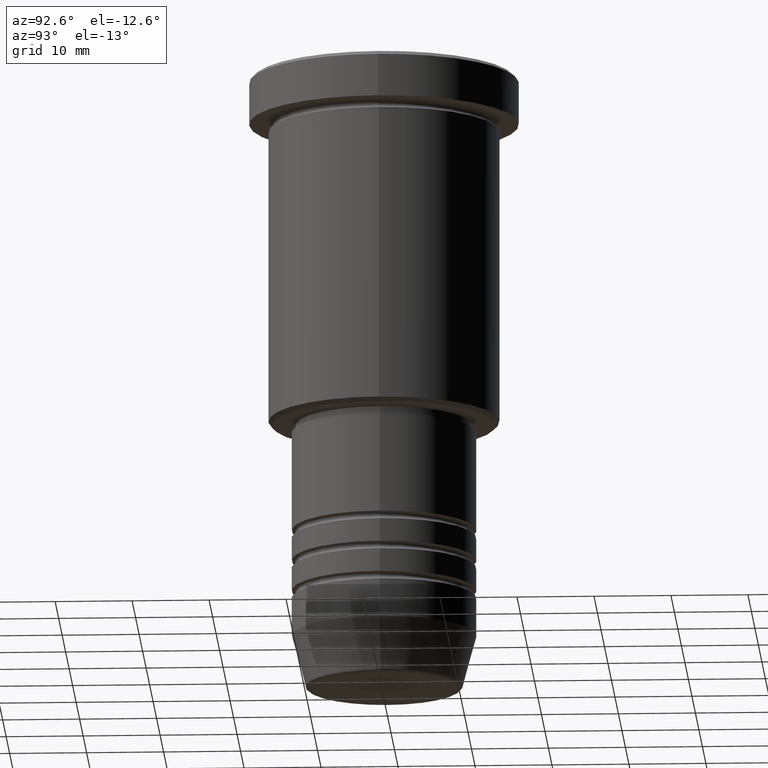
[diagram: clean part render]
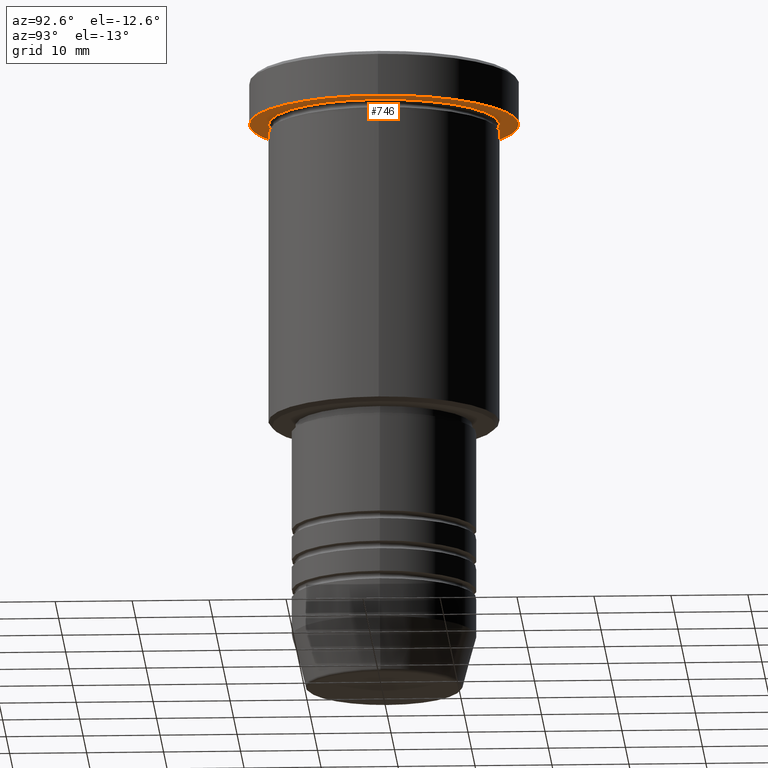
[diagram: same view with one face highlighted and labeled with its STEP entity id]
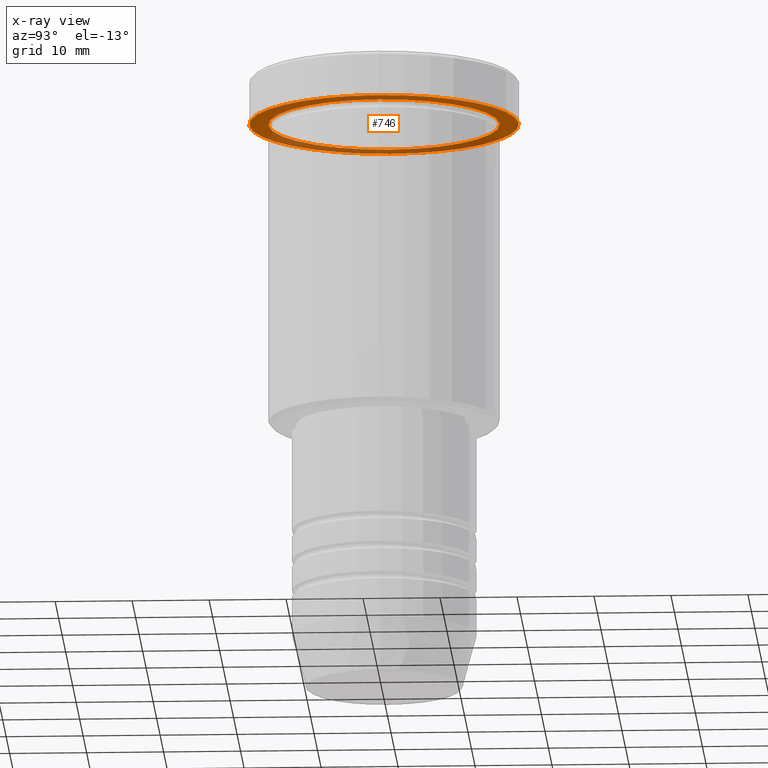
[diagram: x-ray of the same camera — body ghosted, the highlighted face saturated]
A machine part, auxiliary view. The second image highlights one B-rep face of the part: STEP entity #746.
The next image is the same camera in x-ray: the body ghosted, the highlighted face saturated — about 36% of this face is hidden behind the body in this view.
In plain terms, the highlighted planar face has unit normal (0, 0, -1).
Its self-contained STEP definition (entity closure, byte-faithful):
#8 = AXIS2_PLACEMENT_3D ( 'NONE', #1143, #785, #143 ) ;
#40 = VERTEX_POINT ( 'NONE', #332 ) ;
#47 = EDGE_CURVE ( 'NONE', #702, #310, #1136, .T. ) ;
#65 = AXIS2_PLACEMENT_3D ( 'NONE', #1065, #626, #533 ) ;
#73 = CARTESIAN_POINT ( 'NONE',  ( 15.00000000000000000, 1.836970198721029589E-15, -5.999999999999994671 ) ) ;
#93 = FACE_OUTER_BOUND ( 'NONE', #165, .T. ) ;
#140 = AXIS2_PLACEMENT_3D ( 'NONE', #559, #537, #752 ) ;
#143 = DIRECTION ( 'NONE',  ( 1.000000000000000000, 0.000000000000000000, 0.000000000000000000 ) ) ;
#145 = DIRECTION ( 'NONE',  ( -0.000000000000000000, -0.000000000000000000, 1.000000000000000000 ) ) ;
#165 = EDGE_LOOP ( 'NONE', ( #265, #1087 ) ) ;
#172 = EDGE_CURVE ( 'NONE', #1056, #40, #757, .T. ) ;
#253 = DIRECTION ( 'NONE',  ( -1.000000000000000000, 0.000000000000000000, 0.000000000000000000 ) ) ;
#265 = ORIENTED_EDGE ( 'NONE', *, *, #727, .F. ) ;
#310 = VERTEX_POINT ( 'NONE', #1068 ) ;
#332 = CARTESIAN_POINT ( 'NONE',  ( 17.50000000000000000, 0.000000000000000000, -5.999999999999995559 ) ) ;
#339 = CIRCLE ( 'NONE', #65, 17.50000000000000000 ) ;
#401 = EDGE_LOOP ( 'NONE', ( #576, #922 ) ) ;
#455 = PLANE ( 'NONE',  #140 ) ;
#533 = DIRECTION ( 'NONE',  ( 1.000000000000000000, 0.000000000000000000, 0.000000000000000000 ) ) ;
#537 = DIRECTION ( 'NONE',  ( 0.000000000000000000, 0.000000000000000000, -1.000000000000000000 ) ) ;
#559 = CARTESIAN_POINT ( 'NONE',  ( 0.000000000000000000, 17.50000000000000000, -5.999999999999995559 ) ) ;
#576 = ORIENTED_EDGE ( 'NONE', *, *, #659, .T. ) ;
#626 = DIRECTION ( 'NONE',  ( -0.000000000000000000, -0.000000000000000000, 1.000000000000000000 ) ) ;
#659 = EDGE_CURVE ( 'NONE', #310, #702, #700, .T. ) ;
#700 = CIRCLE ( 'NONE', #1159, 15.00000000000000000 ) ;
#702 = VERTEX_POINT ( 'NONE', #73 ) ;
#727 = EDGE_CURVE ( 'NONE', #40, #1056, #339, .T. ) ;
#746 = ADVANCED_FACE ( 'NONE', ( #826, #93 ), #455, .T. ) ;
#752 = DIRECTION ( 'NONE',  ( -1.000000000000000000, 0.000000000000000000, -0.000000000000000000 ) ) ;
#757 = CIRCLE ( 'NONE', #8, 17.50000000000000000 ) ;
#785 = DIRECTION ( 'NONE',  ( -0.000000000000000000, -0.000000000000000000, 1.000000000000000000 ) ) ;
#826 = FACE_BOUND ( 'NONE', #401, .T. ) ;
#880 = DIRECTION ( 'NONE',  ( -1.000000000000000000, 0.000000000000000000, 0.000000000000000000 ) ) ;
#922 = ORIENTED_EDGE ( 'NONE', *, *, #47, .T. ) ;
#973 = CARTESIAN_POINT ( 'NONE',  ( 0.000000000000000000, 0.000000000000000000, -5.999999999999995559 ) ) ;
#994 = DIRECTION ( 'NONE',  ( -0.000000000000000000, -0.000000000000000000, 1.000000000000000000 ) ) ;
#1016 = AXIS2_PLACEMENT_3D ( 'NONE', #1062, #145, #880 ) ;
#1056 = VERTEX_POINT ( 'NONE', #1070 ) ;
#1062 = CARTESIAN_POINT ( 'NONE',  ( 0.000000000000000000, 0.000000000000000000, -5.999999999999995559 ) ) ;
#1065 = CARTESIAN_POINT ( 'NONE',  ( 0.000000000000000000, 0.000000000000000000, -5.999999999999995559 ) ) ;
#1068 = CARTESIAN_POINT ( 'NONE',  ( -15.00000000000000000, 0.000000000000000000, -5.999999999999994671 ) ) ;
#1070 = CARTESIAN_POINT ( 'NONE',  ( -17.50000000000000000, 2.143131898507868248E-15, -5.999999999999995559 ) ) ;
#1087 = ORIENTED_EDGE ( 'NONE', *, *, #172, .F. ) ;
#1136 = CIRCLE ( 'NONE', #1016, 15.00000000000000000 ) ;
#1143 = CARTESIAN_POINT ( 'NONE',  ( 0.000000000000000000, 0.000000000000000000, -5.999999999999995559 ) ) ;
#1159 = AXIS2_PLACEMENT_3D ( 'NONE', #973, #994, #253 ) ;